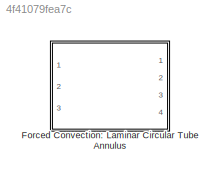
MODEL slx_4f41079fea7c
KIND library
CONFIG AbsTol = auto
CONFIG FixedStep = auto
CONFIG MaxStep = auto
CONFIG MinStep = auto
CONFIG RelTol = 1e-3
CONFIG SampleTimeConstraint = Unconstrained
CONFIG Solver = ode45
CONFIG SolverMode = Auto
CONFIG SolverName = ode45
CONFIG StartTime = 0.0
CONFIG StopTime = 10.0
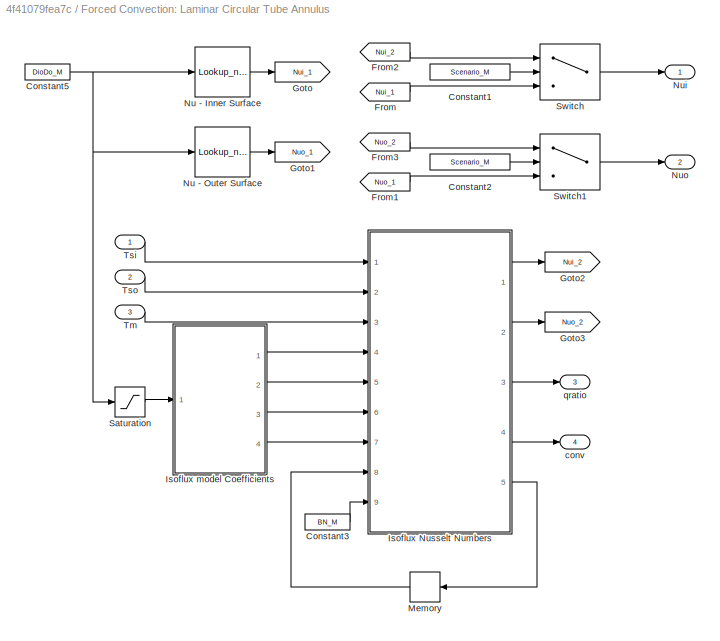
BLOCK [SubSystem] Forced Convection: Laminar Circular Tube Annulus
  Ports = [3, 4]
  RequestExecContextInheritance = off
BLOCK [Constant] Forced Convection: Laminar Circular Tube Annulus/Constant1
  Value = Scenario_M
BLOCK [Constant] Forced Convection: Laminar Circular Tube Annulus/Constant2
  Value = Scenario_M
BLOCK [Constant] Forced Convection: Laminar Circular Tube Annulus/Constant3
  Value = BN_M
BLOCK [Constant] Forced Convection: Laminar Circular Tube Annulus/Constant5
  Value = DioDo_M
BLOCK [From] Forced Convection: Laminar Circular Tube Annulus/From
  GotoTag = Nui_1
BLOCK [From] Forced Convection: Laminar Circular Tube Annulus/From1
  GotoTag = Nuo_1
BLOCK [From] Forced Convection: Laminar Circular Tube Annulus/From2
  GotoTag = Nui_2
BLOCK [From] Forced Convection: Laminar Circular Tube Annulus/From3
  GotoTag = Nuo_2
BLOCK [Goto] Forced Convection: Laminar Circular Tube Annulus/Goto
  GotoTag = Nui_1
BLOCK [Goto] Forced Convection: Laminar Circular Tube Annulus/Goto1
  GotoTag = Nuo_1
BLOCK [Goto] Forced Convection: Laminar Circular Tube Annulus/Goto2
  GotoTag = Nui_2
BLOCK [Goto] Forced Convection: Laminar Circular Tube Annulus/Goto3
  GotoTag = Nuo_2
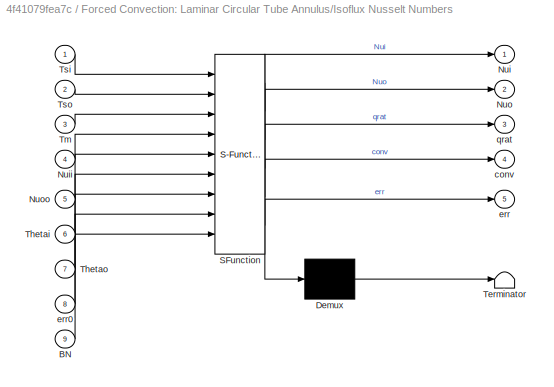
BLOCK [SubSystem] Forced Convection: Laminar Circular Tube Annulus/Isoflux Nusselt Numbers
  ErrorFcn = Stateflow.Translate.translate
  PermitHierarchicalResolution = ExplicitOnly
  Ports = [9, 5]
  RequestExecContextInheritance = off
  SFBlockType = MATLAB Function
  TreatAsAtomicUnit = on
BLOCK [Demux] Forced Convection: Laminar Circular Tube Annulus/Isoflux Nusselt Numbers/ Demux 
  Outputs = 1
  Ports = [1, 1]
BLOCK [S-Function] Forced Convection: Laminar Circular Tube Annulus/Isoflux Nusselt Numbers/ SFunction 
  EnableBusSupport = on
  FunctionName = sf_sfun
  PortCounts = [9 6]
  Ports = [9, 6]
  Tag = Stateflow S-Function lib_Convection_LamCircTurbAnnulus 2
BLOCK [Terminator] Forced Convection: Laminar Circular Tube Annulus/Isoflux Nusselt Numbers/ Terminator 
BLOCK [Inport] Forced Convection: Laminar Circular Tube Annulus/Isoflux Nusselt Numbers/BN
  IconDisplay = Port number
  Port = 9
BLOCK [Outport] Forced Convection: Laminar Circular Tube Annulus/Isoflux Nusselt Numbers/Nui
  IconDisplay = Port number
BLOCK [Inport] Forced Convection: Laminar Circular Tube Annulus/Isoflux Nusselt Numbers/Nuii
  IconDisplay = Port number
  Port = 4
BLOCK [Outport] Forced Convection: Laminar Circular Tube Annulus/Isoflux Nusselt Numbers/Nuo
  IconDisplay = Port number
  Port = 2
BLOCK [Inport] Forced Convection: Laminar Circular Tube Annulus/Isoflux Nusselt Numbers/Nuoo
  IconDisplay = Port number
  Port = 5
BLOCK [Inport] Forced Convection: Laminar Circular Tube Annulus/Isoflux Nusselt Numbers/Thetai
  IconDisplay = Port number
  Port = 6
BLOCK [Inport] Forced Convection: Laminar Circular Tube Annulus/Isoflux Nusselt Numbers/Thetao
  IconDisplay = Port number
  Port = 7
BLOCK [Inport] Forced Convection: Laminar Circular Tube Annulus/Isoflux Nusselt Numbers/Tm
  IconDisplay = Port number
  Port = 3
BLOCK [Inport] Forced Convection: Laminar Circular Tube Annulus/Isoflux Nusselt Numbers/Tsi
  IconDisplay = Port number
BLOCK [Inport] Forced Convection: Laminar Circular Tube Annulus/Isoflux Nusselt Numbers/Tso
  IconDisplay = Port number
  Port = 2
BLOCK [Outport] Forced Convection: Laminar Circular Tube Annulus/Isoflux Nusselt Numbers/conv
  IconDisplay = Port number
  Port = 4
BLOCK [Outport] Forced Convection: Laminar Circular Tube Annulus/Isoflux Nusselt Numbers/err
  IconDisplay = Port number
  Port = 5
BLOCK [Inport] Forced Convection: Laminar Circular Tube Annulus/Isoflux Nusselt Numbers/err0
  IconDisplay = Port number
  Port = 8
BLOCK [Outport] Forced Convection: Laminar Circular Tube Annulus/Isoflux Nusselt Numbers/qrat
  IconDisplay = Port number
  Port = 3
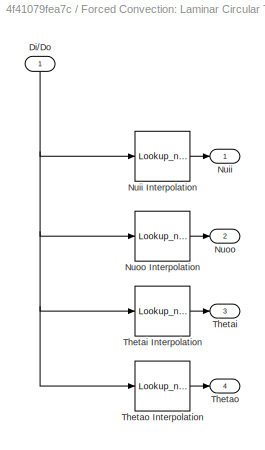
BLOCK [SubSystem] Forced Convection: Laminar Circular Tube Annulus/Isoflux model Coefficients 
  Ports = [1, 4]
  RequestExecContextInheritance = off
BLOCK [Inport] Forced Convection: Laminar Circular Tube Annulus/Isoflux model Coefficients /Di//Do
  IconDisplay = Port number
BLOCK [Outport] Forced Convection: Laminar Circular Tube Annulus/Isoflux model Coefficients /Nuii
  IconDisplay = Port number
BLOCK [Lookup_n-D] Forced Convection: Laminar Circular Tube Annulus/Isoflux model Coefficients /Nuii Interpolation
  BreakpointsForDimension1 = [0 0.000001 0.05 0.1 0.2 0.4 0.6 0.8 1]
  InternalRulePriority = Speed
  NumberOfTableDimensions = 1
  Ports = [1, 1]
  RndMeth = Simplest
  Table = [0 17.81 17.81 11.91 8.499 6.583 5.912 5.58 5.385]
BLOCK [Outport] Forced Convection: Laminar Circular Tube Annulus/Isoflux model Coefficients /Nuoo
  IconDisplay = Port number
  Port = 2
BLOCK [Lookup_n-D] Forced Convection: Laminar Circular Tube Annulus/Isoflux model Coefficients /Nuoo Interpolation
  BreakpointsForDimension1 = [0 0.05 0.1 0.2 0.4 0.6 0.8 1]
  InternalRulePriority = Speed
  NumberOfTableDimensions = 1
  Ports = [1, 1]
  RndMeth = Simplest
  Table = [4.364 4.792 4.834 4.833 4.979 5.099 5.24 5.385]
BLOCK [Outport] Forced Convection: Laminar Circular Tube Annulus/Isoflux model Coefficients /Thetai
  IconDisplay = Port number
  Port = 3
BLOCK [Lookup_n-D] Forced Convection: Laminar Circular Tube Annulus/Isoflux model Coefficients /Thetai Interpolation
  BreakpointsForDimension1 = [0 0.000001 0.05 0.1 0.2 0.4 0.6 0.8 1]
  InternalRulePriority = Speed
  NumberOfTableDimensions = 1
  Ports = [1, 1]
  RndMeth = Simplest
  Table = [0 2.18 2.18 1.383 0.905 0.603 0.473 0.401 0.346]
BLOCK [Outport] Forced Convection: Laminar Circular Tube Annulus/Isoflux model Coefficients /Thetao
  IconDisplay = Port number
  Port = 4
BLOCK [Lookup_n-D] Forced Convection: Laminar Circular Tube Annulus/Isoflux model Coefficients /Thetao Interpolation
  BreakpointsForDimension1 = [0 0.05 0.1 0.2 0.4 0.6 0.8 1]
  InternalRulePriority = Speed
  NumberOfTableDimensions = 1
  Ports = [1, 1]
  RndMeth = Simplest
  Table = [0 0.0294 0.0562 0.1041 0.1823 0.2455 0.299 0.346]
BLOCK [Memory] Forced Convection: Laminar Circular Tube Annulus/Memory
  X0 = zeros(1,10)
BLOCK [Lookup_n-D] Forced Convection: Laminar Circular Tube Annulus/Nu - Inner Surface
  BreakpointsForDimension1 = [0 0.05 0.1 0.25 0.5 1]
  InternalRulePriority = Speed
  NumberOfTableDimensions = 1
  Ports = [1, 1]
  RndMeth = Simplest
  Table = [17.46 17.46 11.56 7.37 5.74 4.86]
BLOCK [Lookup_n-D] Forced Convection: Laminar Circular Tube Annulus/Nu - Outer Surface
  BreakpointsForDimension1 = [0 0.05 0.1 0.25 0.5 1]
  InternalRulePriority = Speed
  NumberOfTableDimensions = 1
  Ports = [1, 1]
  RndMeth = Simplest
  Table = [3.66 4.06 4.11 4.23 4.43 4.86]
BLOCK [Outport] Forced Convection: Laminar Circular Tube Annulus/Nui
  IconDisplay = Port number
BLOCK [Outport] Forced Convection: Laminar Circular Tube Annulus/Nuo
  IconDisplay = Port number
  Port = 2
BLOCK [Saturate] Forced Convection: Laminar Circular Tube Annulus/Saturation
  InputPortMap = u0
  LowerLimit = 0.000001
  Ports = [1, 1]
  UpperLimit = 1
BLOCK [Switch] Forced Convection: Laminar Circular Tube Annulus/Switch
  Criteria = u2 > Threshold
  InputSameDT = off
  SaturateOnIntegerOverflow = off
  Threshold = 1.5
BLOCK [Switch] Forced Convection: Laminar Circular Tube Annulus/Switch1
  Criteria = u2 > Threshold
  InputSameDT = off
  SaturateOnIntegerOverflow = off
  Threshold = 1.5
BLOCK [Inport] Forced Convection: Laminar Circular Tube Annulus/Tm
  IconDisplay = Port number
  Port = 3
BLOCK [Inport] Forced Convection: Laminar Circular Tube Annulus/Tsi
  IconDisplay = Port number
BLOCK [Inport] Forced Convection: Laminar Circular Tube Annulus/Tso
  IconDisplay = Port number
  Port = 2
BLOCK [Outport] Forced Convection: Laminar Circular Tube Annulus/conv
  IconDisplay = Port number
  Port = 4
BLOCK [Outport] Forced Convection: Laminar Circular Tube Annulus/qratio
  IconDisplay = Port number
  Port = 3
LINE Forced Convection: Laminar Circular Tube Annulus/Constant1:1 -> Forced Convection: Laminar Circular Tube Annulus/Switch:2
LINE Forced Convection: Laminar Circular Tube Annulus/Constant2:1 -> Forced Convection: Laminar Circular Tube Annulus/Switch1:2
LINE Forced Convection: Laminar Circular Tube Annulus/Constant3:1 -> Forced Convection: Laminar Circular Tube Annulus/Isoflux Nusselt Numbers:9
NET Forced Convection: Laminar Circular Tube Annulus/Constant5:1 -> Forced Convection: Laminar Circular Tube Annulus/Nu - Inner Surface:1, Forced Convection: Laminar Circular Tube Annulus/Nu - Outer Surface:1, Forced Convection: Laminar Circular Tube Annulus/Saturation:1
LINE Forced Convection: Laminar Circular Tube Annulus/From1:1 -> Forced Convection: Laminar Circular Tube Annulus/Switch1:3
LINE Forced Convection: Laminar Circular Tube Annulus/From2:1 -> Forced Convection: Laminar Circular Tube Annulus/Switch:1
LINE Forced Convection: Laminar Circular Tube Annulus/From3:1 -> Forced Convection: Laminar Circular Tube Annulus/Switch1:1
LINE Forced Convection: Laminar Circular Tube Annulus/From:1 -> Forced Convection: Laminar Circular Tube Annulus/Switch:3
LINE Forced Convection: Laminar Circular Tube Annulus/Isoflux Nusselt Numbers:1 -> Forced Convection: Laminar Circular Tube Annulus/Goto2:1
LINE Forced Convection: Laminar Circular Tube Annulus/Isoflux Nusselt Numbers:2 -> Forced Convection: Laminar Circular Tube Annulus/Goto3:1
LINE Forced Convection: Laminar Circular Tube Annulus/Isoflux Nusselt Numbers:3 -> Forced Convection: Laminar Circular Tube Annulus/qratio:1
LINE Forced Convection: Laminar Circular Tube Annulus/Isoflux Nusselt Numbers:4 -> Forced Convection: Laminar Circular Tube Annulus/conv:1
LINE Forced Convection: Laminar Circular Tube Annulus/Isoflux Nusselt Numbers:5 -> Forced Convection: Laminar Circular Tube Annulus/Memory:1
NET Forced Convection: Laminar Circular Tube Annulus/Isoflux model Coefficients /Di//Do:1 -> Forced Convection: Laminar Circular Tube Annulus/Isoflux model Coefficients /Nuii Interpolation:1, Forced Convection: Laminar Circular Tube Annulus/Isoflux model Coefficients /Nuoo Interpolation:1, Forced Convection: Laminar Circular Tube Annulus/Isoflux model Coefficients /Thetai Interpolation:1, Forced Convection: Laminar Circular Tube Annulus/Isoflux model Coefficients /Thetao Interpolation:1
LINE Forced Convection: Laminar Circular Tube Annulus/Isoflux model Coefficients /Nuii Interpolation:1 -> Forced Convection: Laminar Circular Tube Annulus/Isoflux model Coefficients /Nuii:1
LINE Forced Convection: Laminar Circular Tube Annulus/Isoflux model Coefficients /Nuoo Interpolation:1 -> Forced Convection: Laminar Circular Tube Annulus/Isoflux model Coefficients /Nuoo:1
LINE Forced Convection: Laminar Circular Tube Annulus/Isoflux model Coefficients /Thetai Interpolation:1 -> Forced Convection: Laminar Circular Tube Annulus/Isoflux model Coefficients /Thetai:1
LINE Forced Convection: Laminar Circular Tube Annulus/Isoflux model Coefficients /Thetao Interpolation:1 -> Forced Convection: Laminar Circular Tube Annulus/Isoflux model Coefficients /Thetao:1
LINE Forced Convection: Laminar Circular Tube Annulus/Isoflux model Coefficients :1 -> Forced Convection: Laminar Circular Tube Annulus/Isoflux Nusselt Numbers:4
LINE Forced Convection: Laminar Circular Tube Annulus/Isoflux model Coefficients :2 -> Forced Convection: Laminar Circular Tube Annulus/Isoflux Nusselt Numbers:5
LINE Forced Convection: Laminar Circular Tube Annulus/Isoflux model Coefficients :3 -> Forced Convection: Laminar Circular Tube Annulus/Isoflux Nusselt Numbers:6
LINE Forced Convection: Laminar Circular Tube Annulus/Isoflux model Coefficients :4 -> Forced Convection: Laminar Circular Tube Annulus/Isoflux Nusselt Numbers:7
LINE Forced Convection: Laminar Circular Tube Annulus/Memory:1 -> Forced Convection: Laminar Circular Tube Annulus/Isoflux Nusselt Numbers:8
LINE Forced Convection: Laminar Circular Tube Annulus/Nu - Inner Surface:1 -> Forced Convection: Laminar Circular Tube Annulus/Goto:1
LINE Forced Convection: Laminar Circular Tube Annulus/Nu - Outer Surface:1 -> Forced Convection: Laminar Circular Tube Annulus/Goto1:1
LINE Forced Convection: Laminar Circular Tube Annulus/Saturation:1 -> Forced Convection: Laminar Circular Tube Annulus/Isoflux model Coefficients :1
LINE Forced Convection: Laminar Circular Tube Annulus/Switch1:1 -> Forced Convection: Laminar Circular Tube Annulus/Nuo:1
LINE Forced Convection: Laminar Circular Tube Annulus/Switch:1 -> Forced Convection: Laminar Circular Tube Annulus/Nui:1
LINE Forced Convection: Laminar Circular Tube Annulus/Tm:1 -> Forced Convection: Laminar Circular Tube Annulus/Isoflux Nusselt Numbers:3
LINE Forced Convection: Laminar Circular Tube Annulus/Tsi:1 -> Forced Convection: Laminar Circular Tube Annulus/Isoflux Nusselt Numbers:1
LINE Forced Convection: Laminar Circular Tube Annulus/Tso:1 -> Forced Convection: Laminar Circular Tube Annulus/Isoflux Nusselt Numbers:2
note: NET lines group one-source signal fan-out (src -> all destinations, sorted); 1:1 wires keep LINE
CHART Forced Convection: Laminar 
Circular Tube Annulus/Isoflux Nusselt Numbers states=1 transitions=1
  STATE_LABEL 'eML_blk_kernel()'
  STATE_LABEL "SCRIPT:\nfunction [Nui,Nuo,qrat,conv,err] = IsofluxSurfaces(Tsi, Tso, Tm, Nuii, Nuoo, Thetai, Thetao, err0, BN)\n%#codegen\n\n%Warning/Error Check\nerr = err0;\nerrNum = 1;\n%Tsi is a 1-D array?\nif min(size(Tsi)) ~= 1 && err0(errNum) ~= 1\n    fprintf('warning in %s: Tsi must be a scalar or 1-D array\\n',char(BN));\n    err(errNum) = 1;\nend\nerrNum = errNum + 1;\n%Tso is a 1-D array?\nif min(size(Tso)) ~= 1 &&...<+3608ch>"
